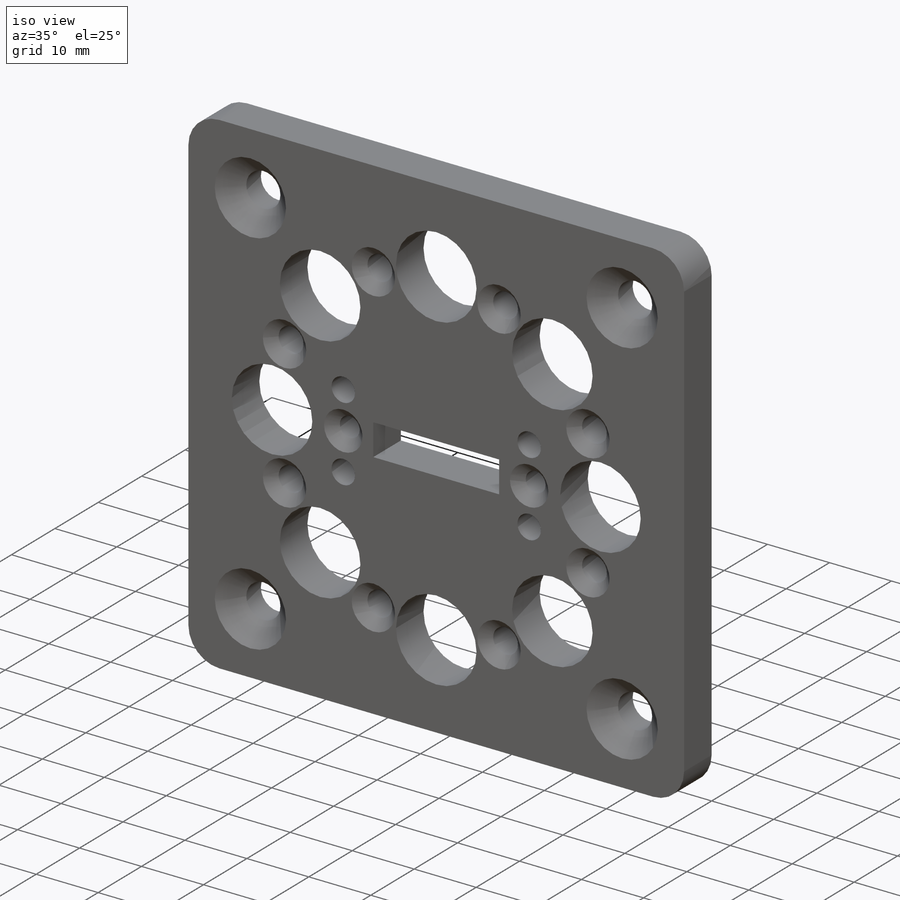
[diagram: iso view]
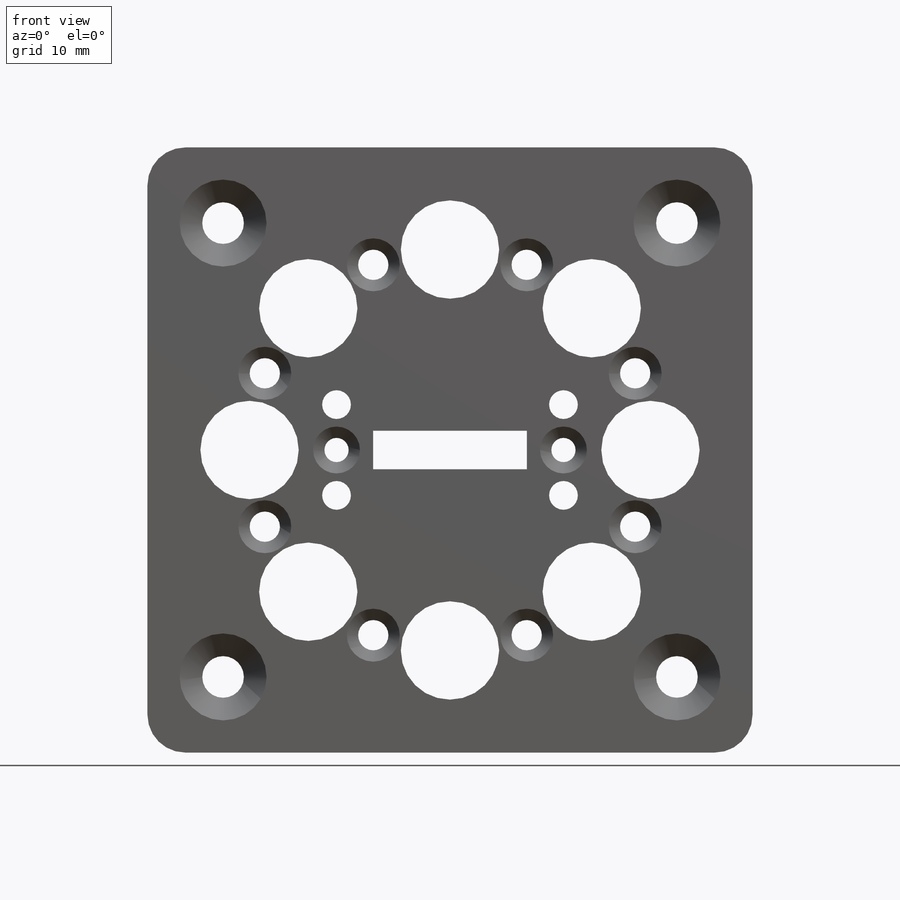
[diagram: front view]
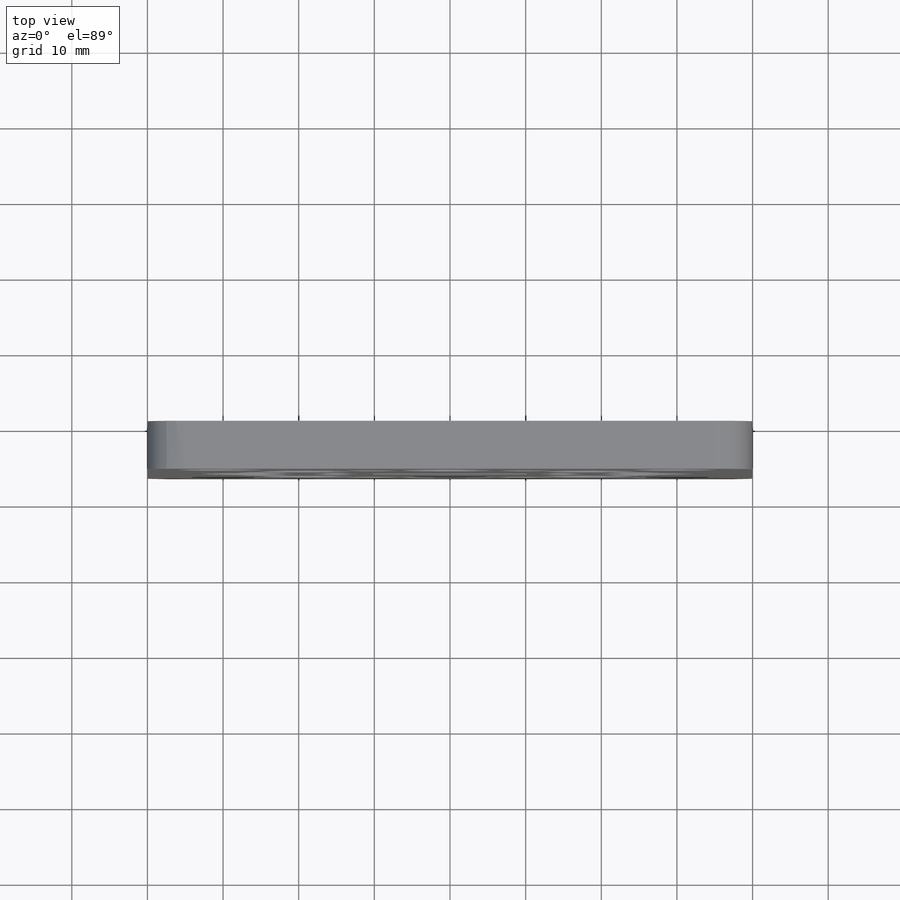
[diagram: top view]
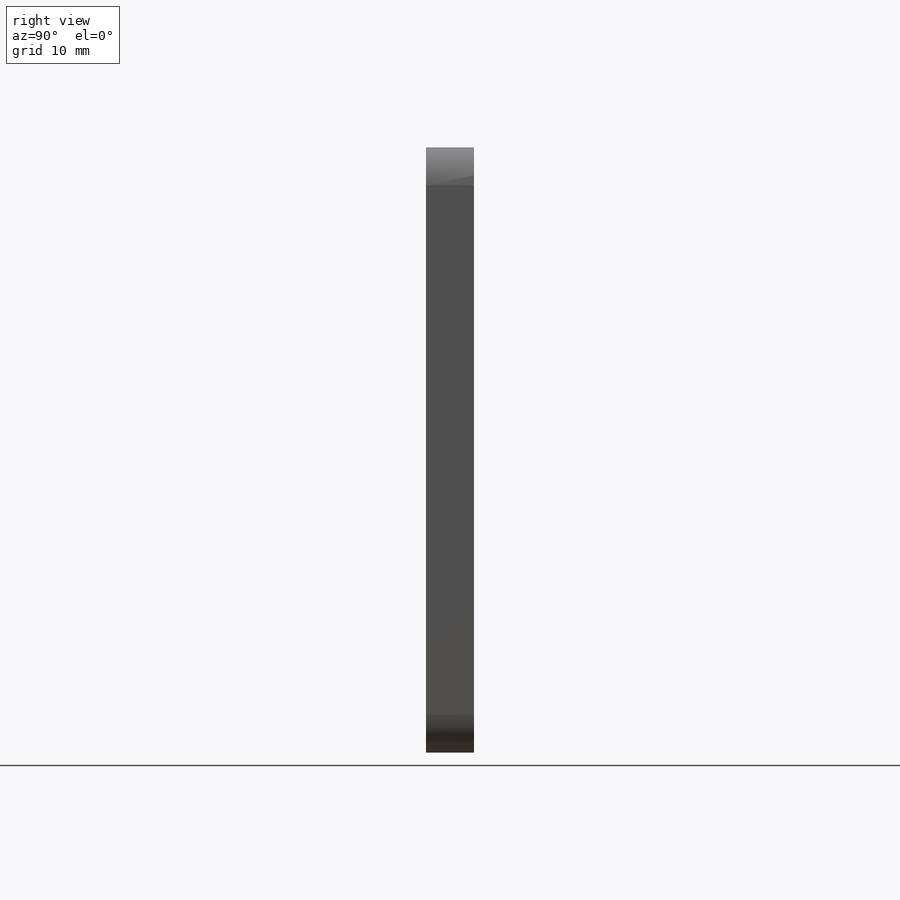
[diagram: right view]
SOLIDWORKS PART (.sldprt)
format: sldprt  version: not decoded by parser v0  size: 572,928 bytes
history: native  units: mm
features: sketch x7, chamfer x5, extrude x4, material x1 + 1 further entry (+18 scaffold rows collapsed; 3 parser-record rows omitted)
feature tree (39):
  scaffold x18  (default folders/planes/origin — collapsed)
  material  "Material <not specified>"
  sketch  "Magnet_Placement-Perm_Magnet_Assembly_Reference"  dims[c1.D1=70.0mm c1.D2=13.0mm c2.D1=8.5mm c2.D3=8.0 c3.D1=3.2mm c3.D5=3.2mm c3.D4=3.2mm c3.D3=2.0mm c3.D7=1.0mm c3.D2=15.0mm c4.D3=22.0mm c4.D4=3.0mm c4.D1=3.0mm c5.D4=3.0mm c5.D1=5.5mm c6.D4=5.0mm c6.D8=1.0mm c6.D9=1.0mm c6.D5=7.0mm c6.D6=~35.482453mm c6.D10=17.78mm c6.D11=2.54mm c6.D12=8.0 c6.D13=2.0 c6.D3=5.0mm c6.D1=80.0mm c6.D2=80.0mm c7.D3=5.5mm c7.D1=10.0mm c7.D2=10.0mm]
  sketch  "Magnet_vessel_mtg_pts-Perm_Magnet_Assembly_Reference"  dims[c1.D1=5.6mm c1.D4=4.0mm c1.D2=15.0mm c2.D1=22.5deg c2.D2=45.0deg c2.D3=26.5mm c2.D5=26.5mm c2.D7=26.5mm c2.D6=8.0]
  sketch  "Magnet_vessel_outline-Perm_Magnet_Assembly_Reference"  dims[c1.D1=28.5mm c1.D2=9.525mm c2.D1=~27.077748mm c2.D2=0.25mm c3.D1=6.0mm c3.D2=0.0mm]
  "Perm_Magnet_Assembly_Reference"
  parser-record x3  (decoder bookkeeping rows leaked as tree rows — omitted from the tree; the rows remain in map.json)
  sketch  "Sketch8"
  extrude  "Boss-Extrude1"  Depth=6.35mm
  sketch  "Sketch9"
  extrude  "Boss-Extrude2"  Depth=6.35mm
  chamfer  "Chamfer1"  Distance=1mm Angle=45deg
  sketch  "Sketch10"
  extrude  "Boss-Extrude4"  Depth=6.35mm
  chamfer  "Chamfer2"  Distance=1.5mm Angle=45deg
  chamfer  "Chamfer3"  Distance=3mm Angle=45deg
  sketch  "Sketch12"  dims[D1=3.175mm D2=8.0]
  extrude  "Boss-Extrude5"  Depth=6.35mm
  chamfer  "Chamfer4"  Distance=3mm Angle=45deg
  chamfer  "Chamfer5"  Distance=1.5mm Angle=45deg
decode coverage: 13 of 16 modeling features carry decoded parameters; 1 rows unclassified (native names shown)
note: ~ marks probable driven/reference dimensions
note: suppression state not decoded; provenance and decode notes live in map.json
